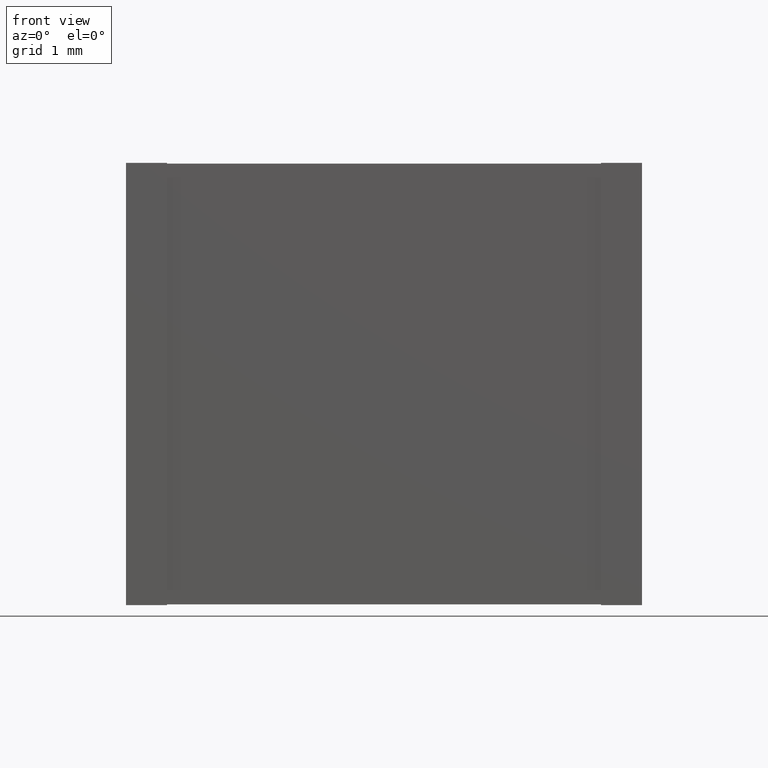
[diagram: clean part render]
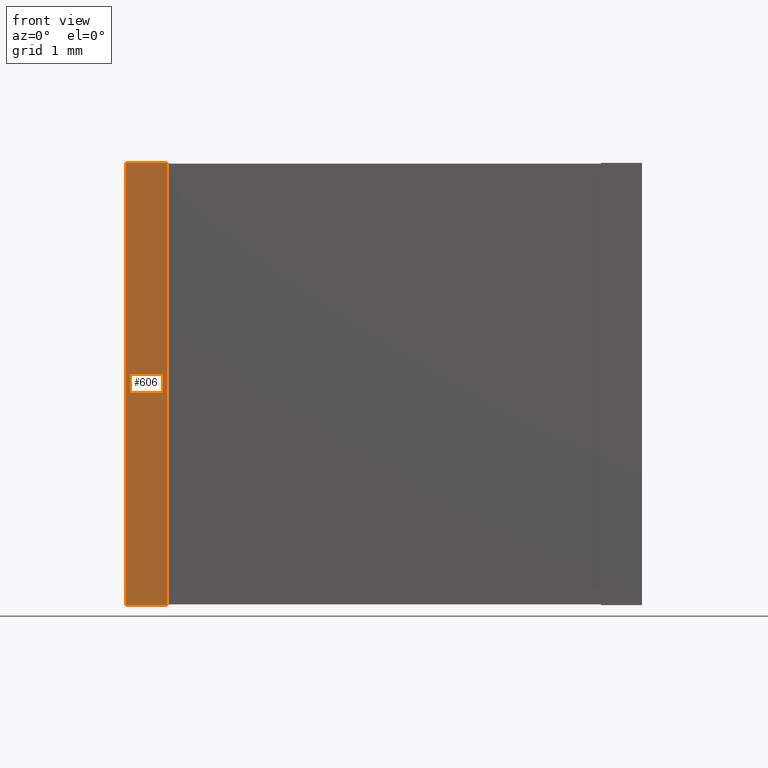
[diagram: same view with one face highlighted and labeled with its STEP entity id]
A machine part, front view. The second image highlights one B-rep face of the part: STEP entity #606.
In plain terms, the highlighted planar face has unit normal (0, 1, 0).
Its self-contained STEP definition (entity closure, byte-faithful):
#35 = VERTEX_POINT ( 'NONE', #2370 ) ;
#105 = ORIENTED_EDGE ( 'NONE', *, *, #2267, .F. ) ;
#128 = EDGE_CURVE ( 'NONE', #750, #35, #256, .T. ) ;
#158 = EDGE_CURVE ( 'NONE', #2227, #750, #663, .T. ) ;
#235 = ORIENTED_EDGE ( 'NONE', *, *, #128, .T. ) ;
#256 = LINE ( 'NONE', #2180, #1888 ) ;
#489 = VECTOR ( 'NONE', #1513, 1000.000000000000000 ) ;
#538 = CARTESIAN_POINT ( 'NONE',  ( 0.4899999999999999911, -0.01000000000000000021, -5.390000000000000568 ) ) ;
#606 = ADVANCED_FACE ( 'NONE', ( #1566 ), #2372, .F. ) ;
#663 = LINE ( 'NONE', #2011, #2175 ) ;
#750 = VERTEX_POINT ( 'NONE', #538 ) ;
#882 = ORIENTED_EDGE ( 'NONE', *, *, #158, .T. ) ;
#939 = LINE ( 'NONE', #1308, #489 ) ;
#1155 = EDGE_LOOP ( 'NONE', ( #235, #105, #2382, #882 ) ) ;
#1180 = DIRECTION ( 'NONE',  ( 1.000000000000000000, -0.000000000000000000, -0.000000000000000000 ) ) ;
#1200 = DIRECTION ( 'NONE',  ( 0.000000000000000000, 1.000000000000000000, 3.137159063904816160E-19 ) ) ;
#1308 = CARTESIAN_POINT ( 'NONE',  ( -0.01000000000000002623, -0.01000000000000000021, -5.390000000000000568 ) ) ;
#1414 = DIRECTION ( 'NONE',  ( 0.000000000000000000, -3.137159063904816160E-19, 1.000000000000000000 ) ) ;
#1496 = VECTOR ( 'NONE', #1180, 1000.000000000000000 ) ;
#1513 = DIRECTION ( 'NONE',  ( 0.000000000000000000, -3.137159063904815678E-19, 1.000000000000000000 ) ) ;
#1566 = FACE_OUTER_BOUND ( 'NONE', #1155, .T. ) ;
#1720 = EDGE_CURVE ( 'NONE', #2227, #2367, #939, .T. ) ;
#1888 = VECTOR ( 'NONE', #1993, 1000.000000000000000 ) ;
#1968 = DIRECTION ( 'NONE',  ( 1.000000000000000000, -0.000000000000000000, -0.000000000000000000 ) ) ;
#1981 = CARTESIAN_POINT ( 'NONE',  ( -0.01000000000000002623, -0.01000000000000000021, -5.390000000000000568 ) ) ;
#1993 = DIRECTION ( 'NONE',  ( 0.000000000000000000, -3.137159063904815678E-19, 1.000000000000000000 ) ) ;
#2011 = CARTESIAN_POINT ( 'NONE',  ( -0.01000000000000002623, -0.01000000000000000021, -5.390000000000000568 ) ) ;
#2162 = LINE ( 'NONE', #2217, #1496 ) ;
#2175 = VECTOR ( 'NONE', #1968, 1000.000000000000000 ) ;
#2180 = CARTESIAN_POINT ( 'NONE',  ( 0.4899999999999999911, -0.01000000000000000021, -5.390000000000000568 ) ) ;
#2217 = CARTESIAN_POINT ( 'NONE',  ( -0.01000000000000002623, -0.01000000000000000194, 0.01000000000000024307 ) ) ;
#2227 = VERTEX_POINT ( 'NONE', #1981 ) ;
#2252 = CARTESIAN_POINT ( 'NONE',  ( -0.01000000000000002623, -0.01000000000000000194, 0.01000000000000024307 ) ) ;
#2267 = EDGE_CURVE ( 'NONE', #2367, #35, #2162, .T. ) ;
#2305 = AXIS2_PLACEMENT_3D ( 'NONE', #2342, #1200, #1414 ) ;
#2342 = CARTESIAN_POINT ( 'NONE',  ( -0.01000000000000002623, -0.01000000000000000021, -5.390000000000000568 ) ) ;
#2367 = VERTEX_POINT ( 'NONE', #2252 ) ;
#2370 = CARTESIAN_POINT ( 'NONE',  ( 0.4899999999999999911, -0.01000000000000000194, 0.01000000000000024307 ) ) ;
#2372 = PLANE ( 'NONE',  #2305 ) ;
#2382 = ORIENTED_EDGE ( 'NONE', *, *, #1720, .F. ) ;